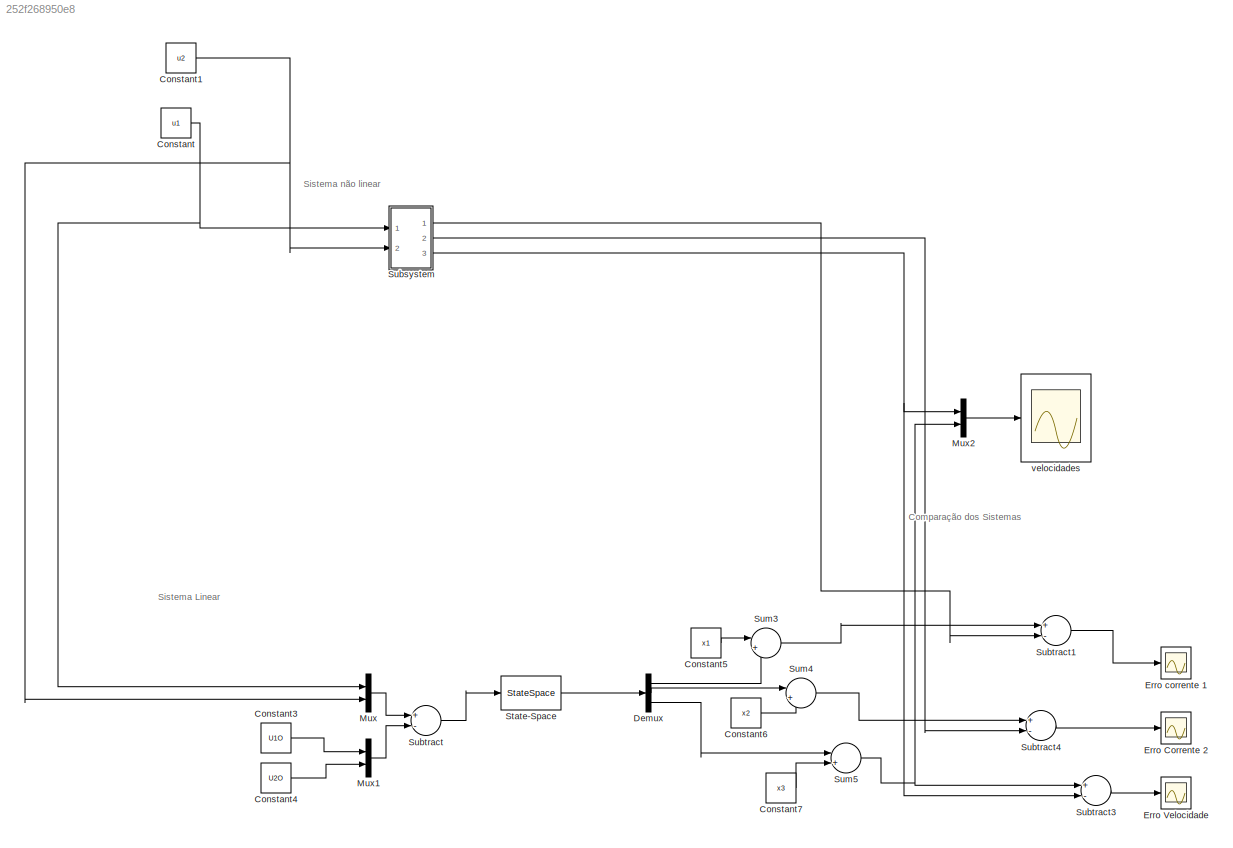
MODEL slx_252f268950e8
KIND model
CONFIG AbsTol = auto
CONFIG FixedStep = auto
CONFIG MaxStep = auto
CONFIG MinStep = 0.01
CONFIG RelTol = 1e-3
CONFIG SampleTimeConstraint = Unconstrained
CONFIG Solver = VariableStepAuto
CONFIG SolverMode = Auto
CONFIG SolverName = VariableStepAuto
CONFIG StartTime = 0.0
CONFIG StopTime = 100.0
BLOCK [Constant] Constant
  Value = u1
BLOCK [Constant] Constant1
  Value = u2
BLOCK [Constant] Constant3
  Value = U1O
BLOCK [Constant] Constant4
  Value = U2O
BLOCK [Constant] Constant5
  Value = x1
BLOCK [Constant] Constant6
  Value = x2
BLOCK [Constant] Constant7
  Value = x3
BLOCK [Demux] Demux
  DisplayOption = bar
  Outputs = 3
  Ports = [1, 3]
BLOCK [Scope] Erro Corrente 2
  Ports = [1]
  ScopeSpecificationString = Simulink.scopes.TimeScopeBlockCfg('CurrentConfiguration', extmgr.ConfigurationSet(extmgr.Configuration('Core','General UI',true),extmgr.Configuration('Core','Source UI',true),extmgr.Configuration('Sources','WiredSimulink',true,'DataLoggingVariableName','ScopeData1'),extmgr.Configuration('Visuals','Time Domain',true,'SerializedDisplays',{struct('MinYLimReal','-0.01607','MaxYLimReal','0.1446','YLabe...<+1364ch>
BLOCK [Scope] Erro Velocidade
  Ports = [1]
  ScopeSpecificationString = Simulink.scopes.TimeScopeBlockCfg('CurrentConfiguration', extmgr.ConfigurationSet(extmgr.Configuration('Core','General UI',true),extmgr.Configuration('Core','Source UI',true),extmgr.Configuration('Sources','WiredSimulink',true,'DataLoggingVariableName','ScopeData2'),extmgr.Configuration('Visuals','Time Domain',true,'SerializedDisplays',{struct('MinYLimReal','-4.99886','MaxYLimReal','44.98972','YLa...<+1372ch>
BLOCK [Scope] Erro corrente 1
  Ports = [1]
  ScopeSpecificationString = Simulink.scopes.TimeScopeBlockCfg('CurrentConfiguration', extmgr.ConfigurationSet(extmgr.Configuration('Core','General UI',true),extmgr.Configuration('Core','Source UI',true),extmgr.Configuration('Sources','WiredSimulink',true),extmgr.Configuration('Visuals','Time Domain',true,'SerializedDisplays',{struct('MinYLimReal','-0.0037','MaxYLimReal','0.03327','YLabelReal','','MinYLimMag','0.00000','MaxYL...<+1327ch>
BLOCK [Mux] Mux
  DisplayOption = bar
  Inputs = 2
  Ports = [2, 1]
BLOCK [Mux] Mux1
  DisplayOption = bar
  Inputs = 2
  Ports = [2, 1]
BLOCK [Mux] Mux2
  DisplayOption = bar
  Inputs = 2
  Ports = [2, 1]
BLOCK [StateSpace] State-Space
  A = MA
  B = MB
  C = MC
  D = MD
  Ports = [1, 1]
  X0 = 0
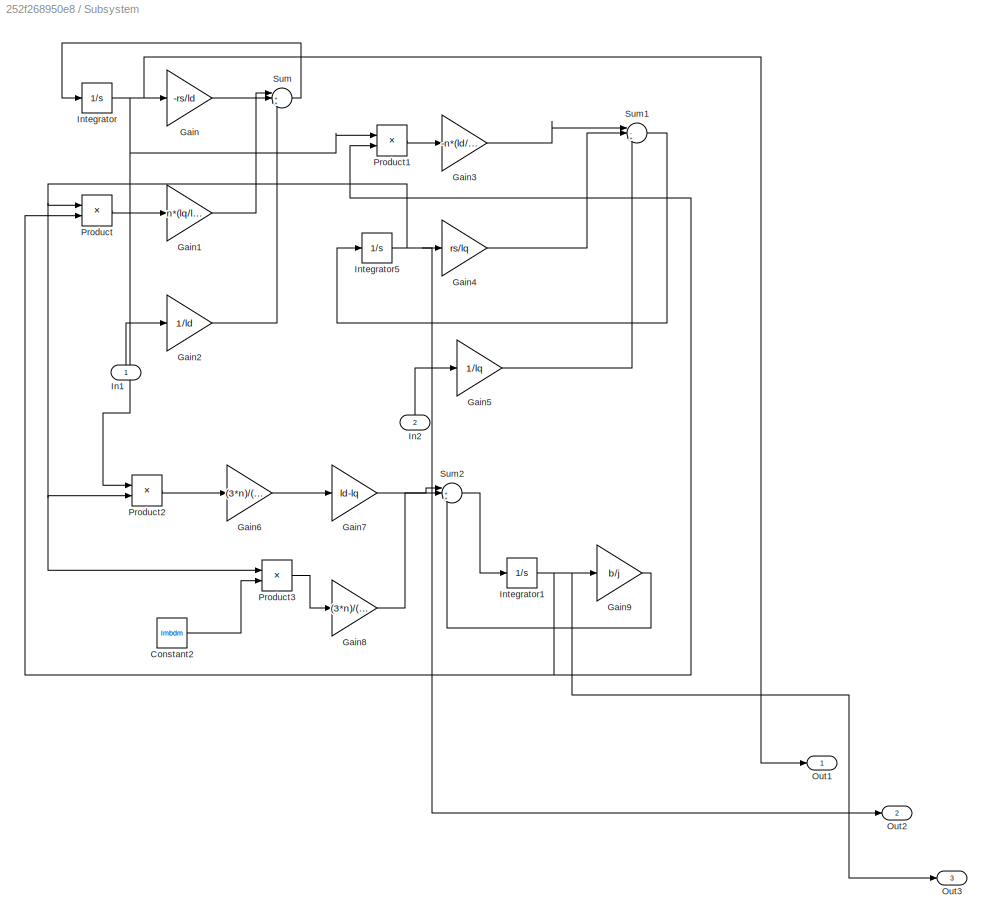
BLOCK [SubSystem] Subsystem
  Ports = [2, 3]
  RequestExecContextInheritance = off
  Variant = off
BLOCK [Constant] Subsystem/Constant2
  Value = lmbdm
BLOCK [Gain] Subsystem/Gain
  Gain = -rs/ld
  OutDataTypeStr = Inherit: Inherit via internal rule
  ParamDataTypeStr = Inherit: Inherit via internal rule
  SaturateOnIntegerOverflow = off
BLOCK [Gain] Subsystem/Gain1
  Gain = n*(lq/ld)
  OutDataTypeStr = Inherit: Inherit via internal rule
  ParamDataTypeStr = Inherit: Inherit via internal rule
  SaturateOnIntegerOverflow = off
BLOCK [Gain] Subsystem/Gain2
  Gain = 1/ld
  OutDataTypeStr = Inherit: Inherit via internal rule
  ParamDataTypeStr = Inherit: Inherit via internal rule
  SaturateOnIntegerOverflow = off
BLOCK [Gain] Subsystem/Gain3
  Gain = -n*(ld/lq)
  OutDataTypeStr = Inherit: Inherit via internal rule
  ParamDataTypeStr = Inherit: Inherit via internal rule
  SaturateOnIntegerOverflow = off
BLOCK [Gain] Subsystem/Gain4
  Gain = rs/lq
  OutDataTypeStr = Inherit: Inherit via internal rule
  ParamDataTypeStr = Inherit: Inherit via internal rule
  SaturateOnIntegerOverflow = off
BLOCK [Gain] Subsystem/Gain5
  Gain = 1/lq
  OutDataTypeStr = Inherit: Inherit via internal rule
  ParamDataTypeStr = Inherit: Inherit via internal rule
  SaturateOnIntegerOverflow = off
BLOCK [Gain] Subsystem/Gain6
  Gain = (3*n)/(2*j)
  OutDataTypeStr = Inherit: Inherit via internal rule
  ParamDataTypeStr = Inherit: Inherit via internal rule
  SaturateOnIntegerOverflow = off
BLOCK [Gain] Subsystem/Gain7
  Gain = ld-lq
  OutDataTypeStr = Inherit: Inherit via internal rule
  ParamDataTypeStr = Inherit: Inherit via internal rule
  SaturateOnIntegerOverflow = off
BLOCK [Gain] Subsystem/Gain8
  Gain = (3*n)/(2*j)
  OutDataTypeStr = Inherit: Inherit via internal rule
  ParamDataTypeStr = Inherit: Inherit via internal rule
  SaturateOnIntegerOverflow = off
BLOCK [Gain] Subsystem/Gain9
  Gain = b/j
  OutDataTypeStr = Inherit: Inherit via internal rule
  ParamDataTypeStr = Inherit: Inherit via internal rule
  SaturateOnIntegerOverflow = off
BLOCK [Inport] Subsystem/In1
  IconDisplay = Port number
BLOCK [Inport] Subsystem/In2
  IconDisplay = Port number
  Port = 2
BLOCK [Integrator] Subsystem/Integrator
  InitialCondition = x1
  Ports = [1, 1]
BLOCK [Integrator] Subsystem/Integrator1
  InitialCondition = x3
  Ports = [1, 1]
BLOCK [Integrator] Subsystem/Integrator5
  InitialCondition = x2
  Ports = [1, 1]
BLOCK [Outport] Subsystem/Out1
  IconDisplay = Port number
BLOCK [Outport] Subsystem/Out2
  IconDisplay = Port number
  Port = 2
BLOCK [Outport] Subsystem/Out3
  IconDisplay = Port number
  Port = 3
BLOCK [Product] Subsystem/Product
  InputSameDT = off
  OutDataTypeStr = Inherit: Inherit via internal rule
  Ports = [2, 1]
  RndMeth = Floor
  SaturateOnIntegerOverflow = off
BLOCK [Product] Subsystem/Product1
  InputSameDT = off
  OutDataTypeStr = Inherit: Inherit via internal rule
  Ports = [2, 1]
  RndMeth = Floor
  SaturateOnIntegerOverflow = off
BLOCK [Product] Subsystem/Product2
  InputSameDT = off
  OutDataTypeStr = Inherit: Inherit via internal rule
  Ports = [2, 1]
  RndMeth = Floor
  SaturateOnIntegerOverflow = off
BLOCK [Product] Subsystem/Product3
  InputSameDT = off
  OutDataTypeStr = Inherit: Inherit via internal rule
  Ports = [2, 1]
  RndMeth = Floor
  SaturateOnIntegerOverflow = off
BLOCK [Sum] Subsystem/Sum
  IconShape = round
  InputSameDT = off
  Inputs = |+++
  OutDataTypeStr = Inherit: Inherit via internal rule
  Ports = [3, 1]
  SaturateOnIntegerOverflow = off
BLOCK [Sum] Subsystem/Sum1
  IconShape = round
  InputSameDT = off
  Inputs = |-++
  OutDataTypeStr = Inherit: Inherit via internal rule
  Ports = [3, 1]
  SaturateOnIntegerOverflow = off
BLOCK [Sum] Subsystem/Sum2
  IconShape = round
  InputSameDT = off
  Inputs = |++-
  OutDataTypeStr = Inherit: Inherit via internal rule
  Ports = [3, 1]
  SaturateOnIntegerOverflow = off
BLOCK [Sum] Subtract
  InputSameDT = off
  Inputs = +-
  OutDataTypeStr = Inherit: Inherit via internal rule
  Ports = [2, 1]
  SaturateOnIntegerOverflow = off
BLOCK [Sum] Subtract1
  InputSameDT = off
  Inputs = +-
  OutDataTypeStr = Inherit: Inherit via internal rule
  Ports = [2, 1]
  SaturateOnIntegerOverflow = off
BLOCK [Sum] Subtract3
  InputSameDT = off
  Inputs = +-
  OutDataTypeStr = Inherit: Inherit via internal rule
  Ports = [2, 1]
  SaturateOnIntegerOverflow = off
BLOCK [Sum] Subtract4
  InputSameDT = off
  Inputs = +-
  OutDataTypeStr = Inherit: Inherit via internal rule
  Ports = [2, 1]
  SaturateOnIntegerOverflow = off
BLOCK [Sum] Sum3
  IconShape = round
  InputSameDT = off
  Inputs = |++
  OutDataTypeStr = Inherit: Inherit via internal rule
  Ports = [2, 1]
  SaturateOnIntegerOverflow = off
BLOCK [Sum] Sum4
  IconShape = round
  InputSameDT = off
  Inputs = |++
  OutDataTypeStr = Inherit: Inherit via internal rule
  Ports = [2, 1]
  SaturateOnIntegerOverflow = off
BLOCK [Sum] Sum5
  IconShape = round
  InputSameDT = off
  Inputs = |++
  OutDataTypeStr = Inherit: Inherit via internal rule
  Ports = [2, 1]
  SaturateOnIntegerOverflow = off
BLOCK [Scope] velocidades 
  Ports = [1]
  ScopeSpecificationString = Simulink.scopes.TimeScopeBlockCfg('CurrentConfiguration', extmgr.ConfigurationSet(extmgr.Configuration('Core','General UI',true),extmgr.Configuration('Core','Source UI',true),extmgr.Configuration('Sources','WiredSimulink',true,'DataLoggingVariableName','ScopeData3'),extmgr.Configuration('Visuals','Time Domain',true,'SerializedDisplays',{struct('MinYLimReal','-24.98972','MaxYLimReal','24.99886','YL...<+1416ch>
ANNOTATION (root): Comparação dos Sistemas
ANNOTATION (root): Sistema Linear
ANNOTATION (root): Sistema não linear
NET Constant1:1 -> Mux:2, Subsystem:2
LINE Constant3:1 -> Mux1:1
LINE Constant4:1 -> Mux1:2
LINE Constant5:1 -> Sum3:1
LINE Constant6:1 -> Sum4:2
LINE Constant7:1 -> Sum5:2
NET Constant:1 -> Mux:1, Subsystem:1
LINE Demux:1 -> Sum3:2
LINE Demux:2 -> Sum4:1
LINE Demux:3 -> Sum5:1
LINE Mux1:1 -> Subtract:2
LINE Mux2:1 -> velocidades :1
LINE Mux:1 -> Subtract:1
LINE State-Space:1 -> Demux:1
LINE Subsystem/Constant2:1 -> Subsystem/Product3:2
LINE Subsystem/Gain1:1 -> Subsystem/Sum:2
LINE Subsystem/Gain2:1 -> Subsystem/Sum:3
LINE Subsystem/Gain3:1 -> Subsystem/Sum1:1
LINE Subsystem/Gain4:1 -> Subsystem/Sum1:2
LINE Subsystem/Gain5:1 -> Subsystem/Sum1:3
LINE Subsystem/Gain6:1 -> Subsystem/Gain7:1
LINE Subsystem/Gain7:1 -> Subsystem/Sum2:1
LINE Subsystem/Gain8:1 -> Subsystem/Sum2:2
LINE Subsystem/Gain9:1 -> Subsystem/Sum2:3
LINE Subsystem/Gain:1 -> Subsystem/Sum:1
LINE Subsystem/In1:1 -> Subsystem/Gain2:1
LINE Subsystem/In2:1 -> Subsystem/Gain5:1
NET Subsystem/Integrator1:1 -> Subsystem/Gain9:1, Subsystem/Out3:1, Subsystem/Product1:2, Subsystem/Product:2
NET Subsystem/Integrator5:1 -> Subsystem/Gain4:1, Subsystem/Out2:1, Subsystem/Product2:2, Subsystem/Product3:1, Subsystem/Product:1
NET Subsystem/Integrator:1 -> Subsystem/Gain:1, Subsystem/Out1:1, Subsystem/Product1:1, Subsystem/Product2:1
LINE Subsystem/Product1:1 -> Subsystem/Gain3:1
LINE Subsystem/Product2:1 -> Subsystem/Gain6:1
LINE Subsystem/Product3:1 -> Subsystem/Gain8:1
LINE Subsystem/Product:1 -> Subsystem/Gain1:1
LINE Subsystem/Sum1:1 -> Subsystem/Integrator5:1
LINE Subsystem/Sum2:1 -> Subsystem/Integrator1:1
LINE Subsystem/Sum:1 -> Subsystem/Integrator:1
LINE Subsystem:1 -> Subtract1:2
LINE Subsystem:2 -> Subtract4:2
NET Subsystem:3 -> Mux2:1, Subtract3:2
LINE Subtract1:1 -> Erro corrente 1:1
LINE Subtract3:1 -> Erro Velocidade:1
LINE Subtract4:1 -> Erro Corrente 2:1
LINE Subtract:1 -> State-Space:1
LINE Sum3:1 -> Subtract1:1
LINE Sum4:1 -> Subtract4:1
NET Sum5:1 -> Mux2:2, Subtract3:1
note: NET lines group one-source signal fan-out (src -> all destinations, sorted); 1:1 wires keep LINE
